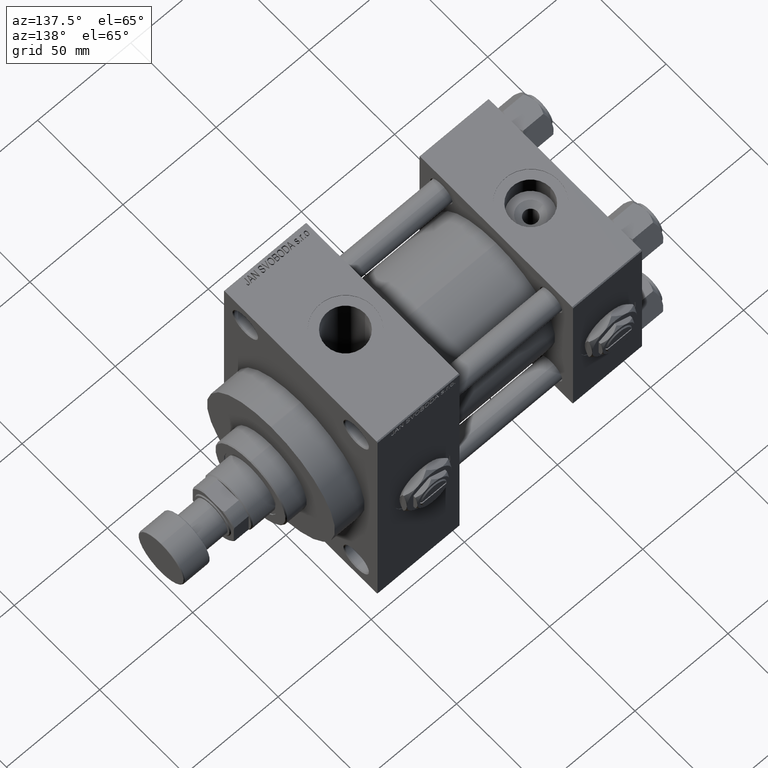
[diagram: clean part render]
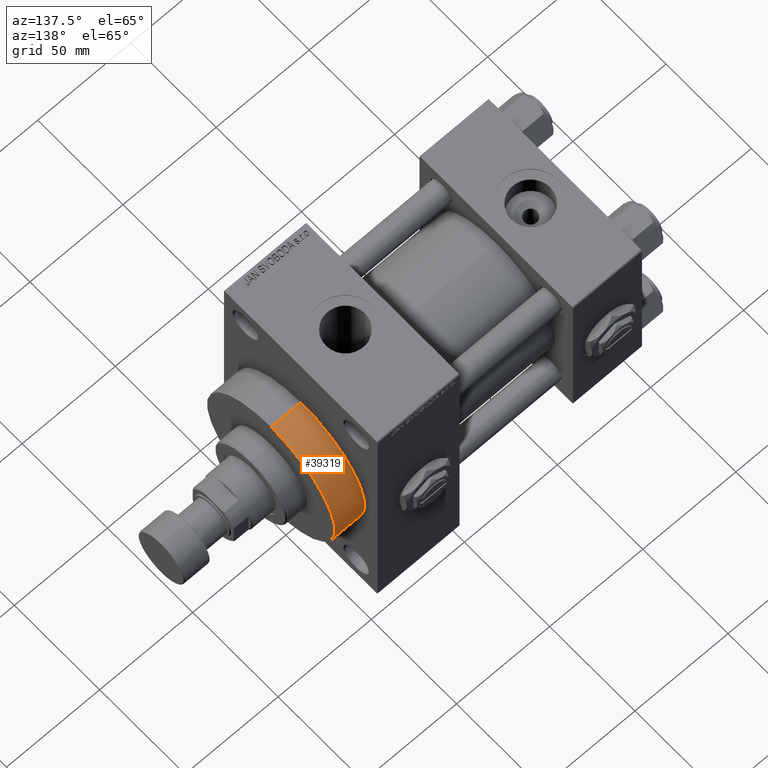
[diagram: same view with one face highlighted and labeled with its STEP entity id]
A machine part, auxiliary view. The second image highlights one B-rep face of the part: STEP entity #39319.
In plain terms, the highlighted cylindrical surface (partial cylindrical patch) has radius 37.5 mm, axis along (-1, -0, -0).
Its self-contained STEP definition (entity closure, byte-faithful):
#475 = VERTEX_POINT ( 'NONE', #7260 ) ;
#2732 = DIRECTION ( 'NONE',  ( -1.000000000000000000, -0.000000000000000000, -0.000000000000000000 ) ) ;
#5176 = EDGE_CURVE ( 'NONE', #33559, #475, #33199, .T. ) ;
#7260 = CARTESIAN_POINT ( 'NONE',  ( 142.0000000000000284, 0.000000000000000000, 37.50000000000000711 ) ) ;
#7727 = DIRECTION ( 'NONE',  ( 1.000000000000000000, 0.000000000000000000, 0.000000000000000000 ) ) ;
#9119 = CARTESIAN_POINT ( 'NONE',  ( 158.0000000000000284, 0.000000000000000000, 0.000000000000000000 ) ) ;
#9366 = DIRECTION ( 'NONE',  ( -1.000000000000000000, -0.000000000000000000, -0.000000000000000000 ) ) ;
#9858 = DIRECTION ( 'NONE',  ( 0.000000000000000000, 0.000000000000000000, 1.000000000000000000 ) ) ;
#10304 = CARTESIAN_POINT ( 'NONE',  ( 158.0000000000000284, 0.000000000000000000, 37.50000000000000711 ) ) ;
#10942 = CARTESIAN_POINT ( 'NONE',  ( 158.0000000000000284, 4.592425496802575156E-15, -37.50000000000000711 ) ) ;
#11746 = CARTESIAN_POINT ( 'NONE',  ( 142.0000000000000284, 0.000000000000000000, 0.000000000000000000 ) ) ;
#16571 = DIRECTION ( 'NONE',  ( 0.000000000000000000, 0.000000000000000000, -1.000000000000000000 ) ) ;
#17539 = EDGE_CURVE ( 'NONE', #36063, #29772, #26047, .T. ) ;
#22019 = AXIS2_PLACEMENT_3D ( 'NONE', #11746, #7727, #49731 ) ;
#23704 = CARTESIAN_POINT ( 'NONE',  ( 142.0000000000000284, 4.592425496802575156E-15, -37.50000000000000711 ) ) ;
#24868 = DIRECTION ( 'NONE',  ( 1.000000000000000000, 0.000000000000000000, 0.000000000000000000 ) ) ;
#26047 = LINE ( 'NONE', #10942, #45437 ) ;
#27448 = CARTESIAN_POINT ( 'NONE',  ( 158.0000000000000284, 4.592425496802575156E-15, -37.50000000000000711 ) ) ;
#28471 = CARTESIAN_POINT ( 'NONE',  ( 158.0000000000000284, 0.000000000000000000, 37.50000000000000711 ) ) ;
#29772 = VERTEX_POINT ( 'NONE', #23704 ) ;
#30591 = AXIS2_PLACEMENT_3D ( 'NONE', #35693, #24868, #16571 ) ;
#31033 = EDGE_CURVE ( 'NONE', #29772, #475, #37275, .T. ) ;
#33156 = VECTOR ( 'NONE', #2732, 1000.000000000000000 ) ;
#33199 = LINE ( 'NONE', #10304, #33156 ) ;
#33559 = VERTEX_POINT ( 'NONE', #28471 ) ;
#34361 = ORIENTED_EDGE ( 'NONE', *, *, #5176, .F. ) ;
#35647 = ORIENTED_EDGE ( 'NONE', *, *, #31033, .T. ) ;
#35693 = CARTESIAN_POINT ( 'NONE',  ( 158.0000000000000284, 0.000000000000000000, 0.000000000000000000 ) ) ;
#36063 = VERTEX_POINT ( 'NONE', #27448 ) ;
#36461 = EDGE_LOOP ( 'NONE', ( #46195, #48619, #35647, #34361 ) ) ;
#37018 = CIRCLE ( 'NONE', #30591, 37.50000000000000711 ) ;
#37275 = CIRCLE ( 'NONE', #22019, 37.50000000000000711 ) ;
#39319 = ADVANCED_FACE ( 'NONE', ( #39803 ), #40060, .T. ) ;
#39803 = FACE_OUTER_BOUND ( 'NONE', #36461, .T. ) ;
#40060 = CYLINDRICAL_SURFACE ( 'NONE', #45471, 37.50000000000000711 ) ;
#41376 = DIRECTION ( 'NONE',  ( -1.000000000000000000, -0.000000000000000000, -0.000000000000000000 ) ) ;
#45437 = VECTOR ( 'NONE', #41376, 1000.000000000000000 ) ;
#45471 = AXIS2_PLACEMENT_3D ( 'NONE', #9119, #9366, #9858 ) ;
#46195 = ORIENTED_EDGE ( 'NONE', *, *, #49262, .F. ) ;
#48619 = ORIENTED_EDGE ( 'NONE', *, *, #17539, .T. ) ;
#49262 = EDGE_CURVE ( 'NONE', #36063, #33559, #37018, .T. ) ;
#49731 = DIRECTION ( 'NONE',  ( 0.000000000000000000, 0.000000000000000000, -1.000000000000000000 ) ) ;